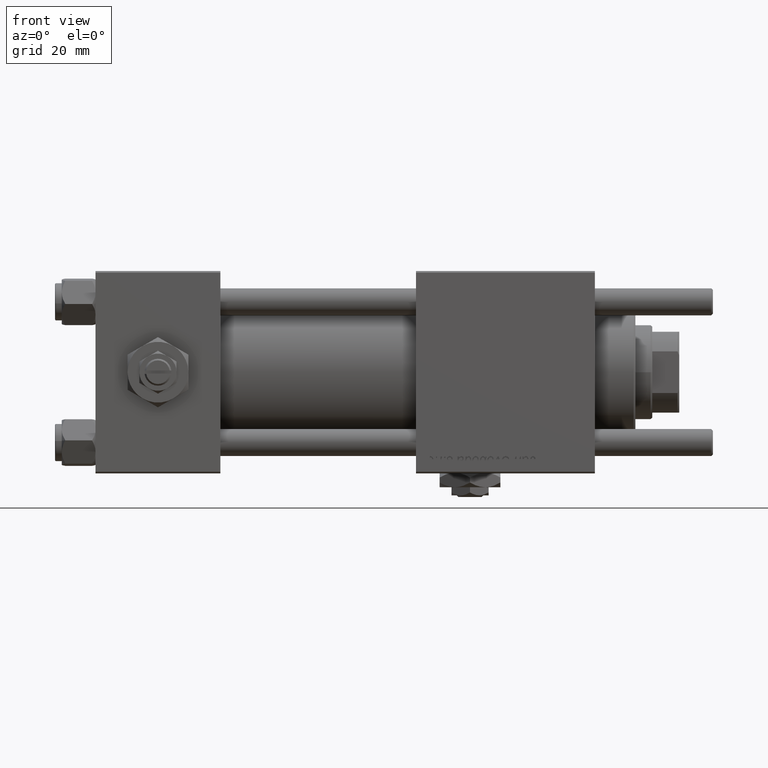
[diagram: clean part render]
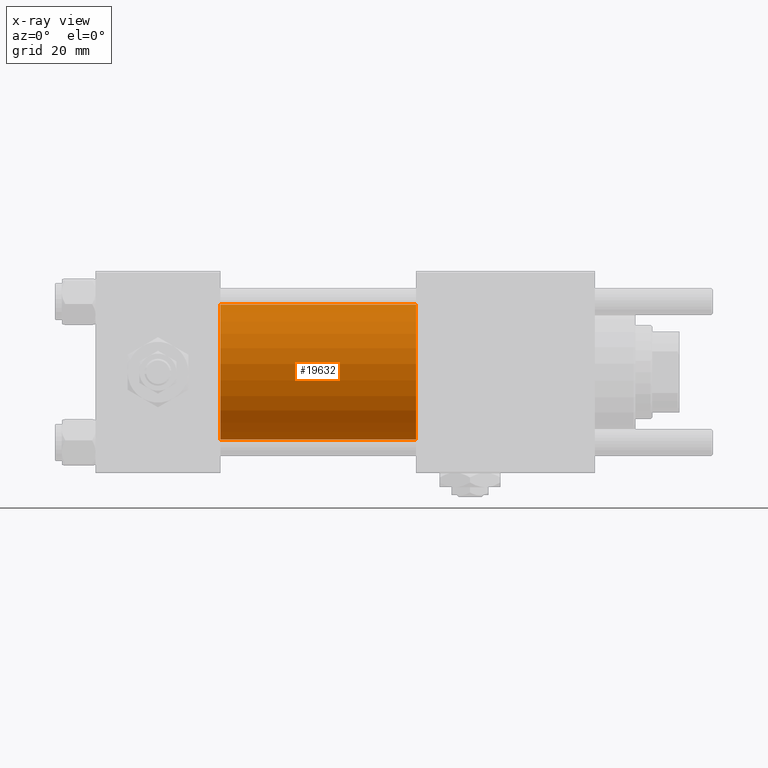
[diagram: x-ray — body ghosted, one internal face saturated and labeled with its STEP entity id]
A machine part, front view, then the same camera in x-ray: the body is ghosted and one INTERNAL B-rep face — a face not visible from any outside direction — is saturated and labeled: STEP entity #19632.
In plain terms, the highlighted cylindrical surface (partial cylindrical patch) has radius 20 mm, axis along (-1, -0, -0).
Its self-contained STEP definition (entity closure, byte-faithful):
#506 = DIRECTION ( 'NONE',  ( 1.000000000000000000, 0.000000000000000000, 0.000000000000000000 ) ) ;
#4234 = ORIENTED_EDGE ( 'NONE', *, *, #23460, .T. ) ;
#4540 = VECTOR ( 'NONE', #27992, 1000.000000000000000 ) ;
#4790 = CYLINDRICAL_SURFACE ( 'NONE', #25329, 20.00000000000000000 ) ;
#5624 = CIRCLE ( 'NONE', #38907, 20.00000000000000000 ) ;
#6929 = CARTESIAN_POINT ( 'NONE',  ( 95.00000000000000000, -2.602085213965210642E-15, 20.00000000000000000 ) ) ;
#8616 = VERTEX_POINT ( 'NONE', #53966 ) ;
#10503 = ORIENTED_EDGE ( 'NONE', *, *, #29237, .F. ) ;
#12376 = VERTEX_POINT ( 'NONE', #6929 ) ;
#12598 = AXIS2_PLACEMENT_3D ( 'NONE', #49346, #43416, #25867 ) ;
#18469 = FACE_OUTER_BOUND ( 'NONE', #36677, .T. ) ;
#19141 = CARTESIAN_POINT ( 'NONE',  ( 37.00000000000000000, -1.527916156705046464E-16, -20.00000000000000000 ) ) ;
#19632 = ADVANCED_FACE ( 'NONE', ( #18469 ), #4790, .F. ) ;
#20896 = VECTOR ( 'NONE', #21348, 1000.000000000000000 ) ;
#21348 = DIRECTION ( 'NONE',  ( -1.000000000000000000, -0.000000000000000000, -0.000000000000000000 ) ) ;
#22947 = CARTESIAN_POINT ( 'NONE',  ( 95.00000000000000000, -1.527916156705046464E-16, -20.00000000000000000 ) ) ;
#23460 = EDGE_CURVE ( 'NONE', #47891, #24366, #58687, .T. ) ;
#24366 = VERTEX_POINT ( 'NONE', #19141 ) ;
#25225 = CARTESIAN_POINT ( 'NONE',  ( 95.00000000000000000, -2.602085213965210642E-15, 20.00000000000000000 ) ) ;
#25329 = AXIS2_PLACEMENT_3D ( 'NONE', #36629, #28279, #41080 ) ;
#25867 = DIRECTION ( 'NONE',  ( 0.000000000000000000, 0.000000000000000000, -1.000000000000000000 ) ) ;
#27992 = DIRECTION ( 'NONE',  ( -1.000000000000000000, -0.000000000000000000, -0.000000000000000000 ) ) ;
#28279 = DIRECTION ( 'NONE',  ( -1.000000000000000000, -0.000000000000000000, -0.000000000000000000 ) ) ;
#29237 = EDGE_CURVE ( 'NONE', #8616, #24366, #5624, .T. ) ;
#33114 = ORIENTED_EDGE ( 'NONE', *, *, #41312, .T. ) ;
#36629 = CARTESIAN_POINT ( 'NONE',  ( 95.00000000000000000, -2.602085213965210642E-15, 0.000000000000000000 ) ) ;
#36677 = EDGE_LOOP ( 'NONE', ( #33114, #4234, #10503, #40388 ) ) ;
#38907 = AXIS2_PLACEMENT_3D ( 'NONE', #46020, #506, #45154 ) ;
#40388 = ORIENTED_EDGE ( 'NONE', *, *, #47198, .F. ) ;
#41080 = DIRECTION ( 'NONE',  ( 0.000000000000000000, 0.000000000000000000, 1.000000000000000000 ) ) ;
#41312 = EDGE_CURVE ( 'NONE', #12376, #47891, #51543, .T. ) ;
#42758 = LINE ( 'NONE', #25225, #20896 ) ;
#43416 = DIRECTION ( 'NONE',  ( 1.000000000000000000, 0.000000000000000000, 0.000000000000000000 ) ) ;
#45154 = DIRECTION ( 'NONE',  ( 0.000000000000000000, 0.000000000000000000, -1.000000000000000000 ) ) ;
#45777 = CARTESIAN_POINT ( 'NONE',  ( 95.00000000000000000, -1.527916156705046464E-16, -20.00000000000000000 ) ) ;
#46020 = CARTESIAN_POINT ( 'NONE',  ( 37.00000000000000000, -2.602085213965210642E-15, 0.000000000000000000 ) ) ;
#47198 = EDGE_CURVE ( 'NONE', #12376, #8616, #42758, .T. ) ;
#47891 = VERTEX_POINT ( 'NONE', #45777 ) ;
#49346 = CARTESIAN_POINT ( 'NONE',  ( 95.00000000000000000, -2.602085213965210642E-15, 0.000000000000000000 ) ) ;
#51543 = CIRCLE ( 'NONE', #12598, 20.00000000000000000 ) ;
#53966 = CARTESIAN_POINT ( 'NONE',  ( 37.00000000000000000, -2.602085213965210642E-15, 20.00000000000000000 ) ) ;
#58687 = LINE ( 'NONE', #22947, #4540 ) ;